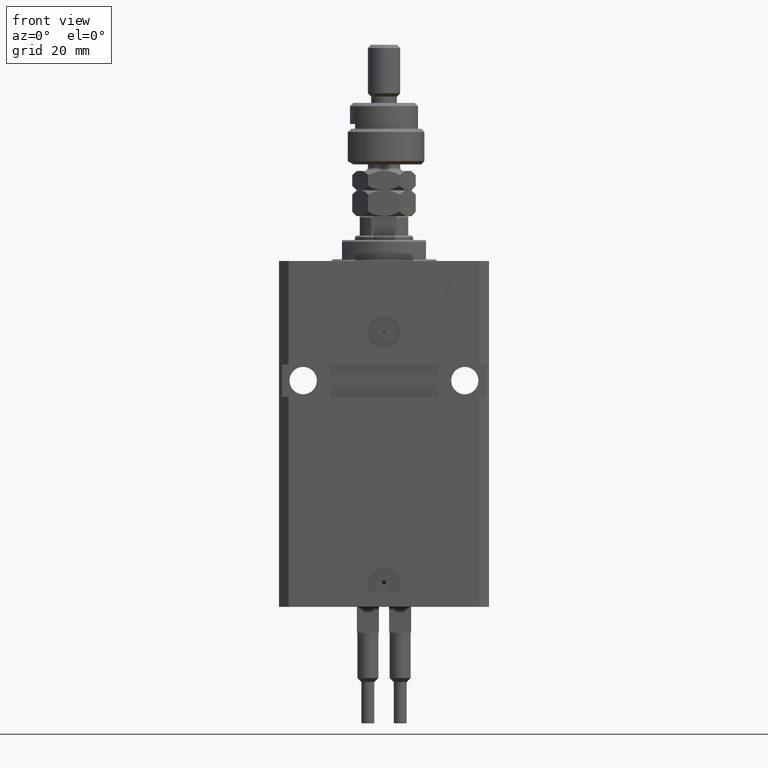
[diagram: clean part render]
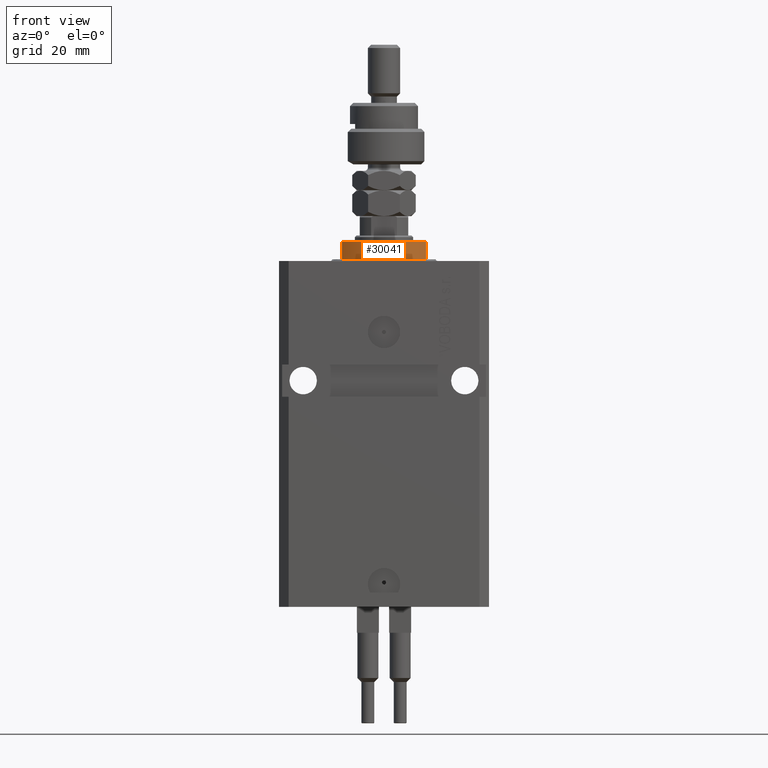
[diagram: same view with one face highlighted and labeled with its STEP entity id]
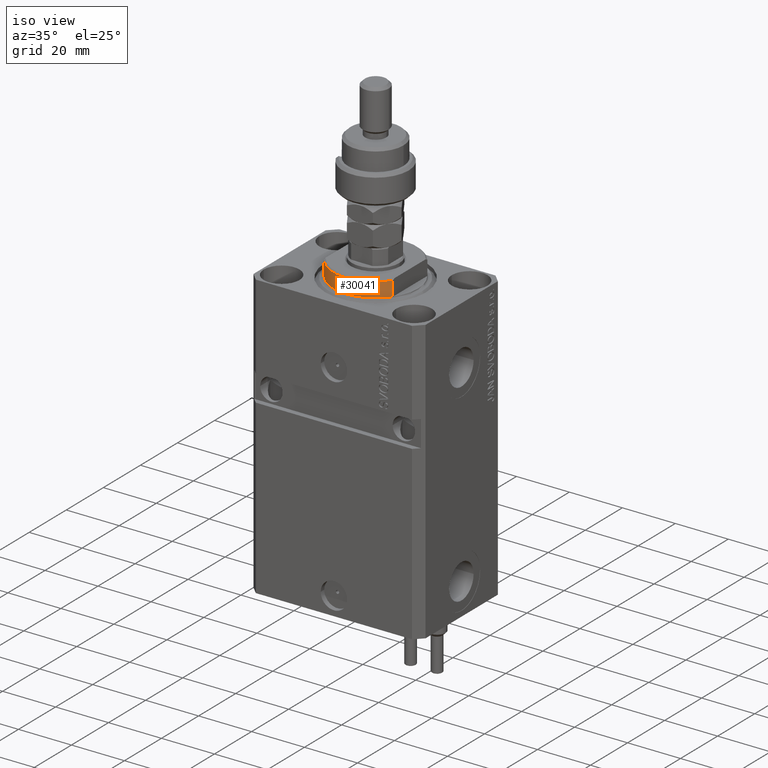
[diagram: same view with one face highlighted and labeled with its STEP entity id]
A machine part, front view. The second image highlights one B-rep face of the part: STEP entity #30041.
A second angle (iso view) of the same face is appended — the face is thin or edge-on in the first view.
In plain terms, the highlighted cylindrical surface (partial cylindrical patch) has radius 16 mm, axis along (0, 0, -1).
Its self-contained STEP definition (entity closure, byte-faithful):
#603 = ORIENTED_EDGE ( 'NONE', *, *, #48209, .T. ) ;
#630 = ORIENTED_EDGE ( 'NONE', *, *, #18156, .T. ) ;
#812 = CARTESIAN_POINT ( 'NONE',  ( -13.00000000000000000, -9.327379053088815652, -6.000000000000030198 ) ) ;
#1331 = CARTESIAN_POINT ( 'NONE',  ( 13.00000000000000000, -9.327379053088815652, -6.000000000000030198 ) ) ;
#2343 = DIRECTION ( 'NONE',  ( 0.000000000000000000, 0.000000000000000000, -1.000000000000000000 ) ) ;
#4713 = DIRECTION ( 'NONE',  ( 0.000000000000000000, 0.000000000000000000, -1.000000000000000000 ) ) ;
#4859 = CIRCLE ( 'NONE', #36072, 16.00000000000000000 ) ;
#5694 = VECTOR ( 'NONE', #2343, 1000.000000000000000 ) ;
#6950 = CARTESIAN_POINT ( 'NONE',  ( 13.00000000000000000, -9.327379053088813876, -6.500000000000000000 ) ) ;
#8596 = CARTESIAN_POINT ( 'NONE',  ( 0.000000000000000000, 0.000000000000000000, -0.4999999999999995559 ) ) ;
#15352 = VERTEX_POINT ( 'NONE', #27257 ) ;
#16437 = CARTESIAN_POINT ( 'NONE',  ( 0.000000000000000000, 0.000000000000000000, -6.000000000000030198 ) ) ;
#16534 = ORIENTED_EDGE ( 'NONE', *, *, #28220, .F. ) ;
#18156 = EDGE_CURVE ( 'NONE', #15352, #24372, #24769, .T. ) ;
#20937 = DIRECTION ( 'NONE',  ( 1.000000000000000000, 0.000000000000000000, 0.000000000000000000 ) ) ;
#22045 = DIRECTION ( 'NONE',  ( -0.000000000000000000, -0.000000000000000000, 1.000000000000000000 ) ) ;
#23196 = ORIENTED_EDGE ( 'NONE', *, *, #36655, .T. ) ;
#23771 = CARTESIAN_POINT ( 'NONE',  ( -13.00000000000000000, -9.327379053088813876, -6.500000000000000000 ) ) ;
#24372 = VERTEX_POINT ( 'NONE', #812 ) ;
#24769 = LINE ( 'NONE', #23771, #39093 ) ;
#27257 = CARTESIAN_POINT ( 'NONE',  ( -13.00000000000000000, -9.327379053088815652, -0.4999999999999995559 ) ) ;
#28137 = VERTEX_POINT ( 'NONE', #36815 ) ;
#28220 = EDGE_CURVE ( 'NONE', #28137, #43627, #42434, .T. ) ;
#30041 = ADVANCED_FACE ( 'NONE', ( #36699 ), #33098, .T. ) ;
#32135 = DIRECTION ( 'NONE',  ( -1.000000000000000000, 0.000000000000000000, 0.000000000000000000 ) ) ;
#32295 = AXIS2_PLACEMENT_3D ( 'NONE', #8596, #39984, #20937 ) ;
#33098 = CYLINDRICAL_SURFACE ( 'NONE', #34496, 16.00000000000000000 ) ;
#34365 = DIRECTION ( 'NONE',  ( 1.000000000000000000, 0.000000000000000000, 0.000000000000000000 ) ) ;
#34496 = AXIS2_PLACEMENT_3D ( 'NONE', #41827, #22045, #34365 ) ;
#36072 = AXIS2_PLACEMENT_3D ( 'NONE', #16437, #43443, #32135 ) ;
#36655 = EDGE_CURVE ( 'NONE', #28137, #15352, #50334, .T. ) ;
#36699 = FACE_OUTER_BOUND ( 'NONE', #38677, .T. ) ;
#36815 = CARTESIAN_POINT ( 'NONE',  ( 13.00000000000000000, -9.327379053088815652, -0.4999999999999995559 ) ) ;
#38677 = EDGE_LOOP ( 'NONE', ( #16534, #23196, #630, #603 ) ) ;
#39093 = VECTOR ( 'NONE', #4713, 1000.000000000000000 ) ;
#39984 = DIRECTION ( 'NONE',  ( -0.000000000000000000, -0.000000000000000000, -1.000000000000000000 ) ) ;
#41827 = CARTESIAN_POINT ( 'NONE',  ( 0.000000000000000000, 0.000000000000000000, -6.500000000000000000 ) ) ;
#42434 = LINE ( 'NONE', #6950, #5694 ) ;
#43443 = DIRECTION ( 'NONE',  ( 0.000000000000000000, 0.000000000000000000, 1.000000000000000000 ) ) ;
#43627 = VERTEX_POINT ( 'NONE', #1331 ) ;
#48209 = EDGE_CURVE ( 'NONE', #24372, #43627, #4859, .T. ) ;
#50334 = CIRCLE ( 'NONE', #32295, 16.00000000000000000 ) ;